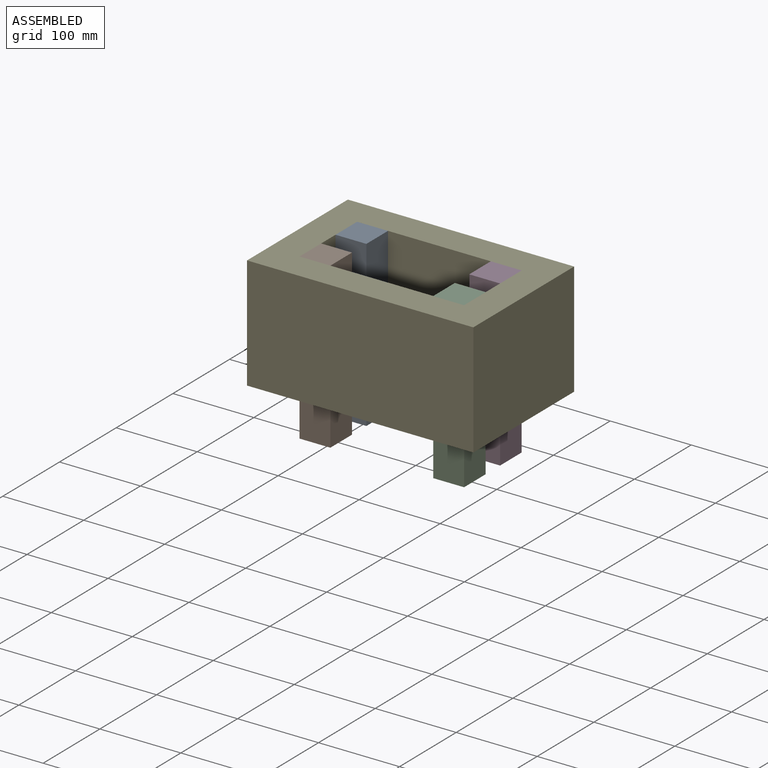
[diagram: assembled view]
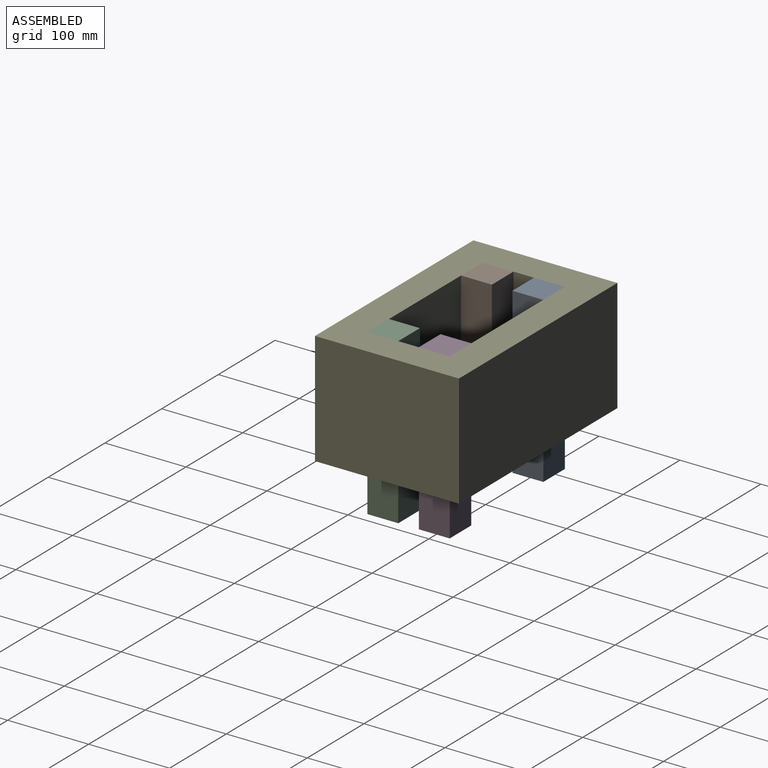
[diagram: assembled view, second angle]
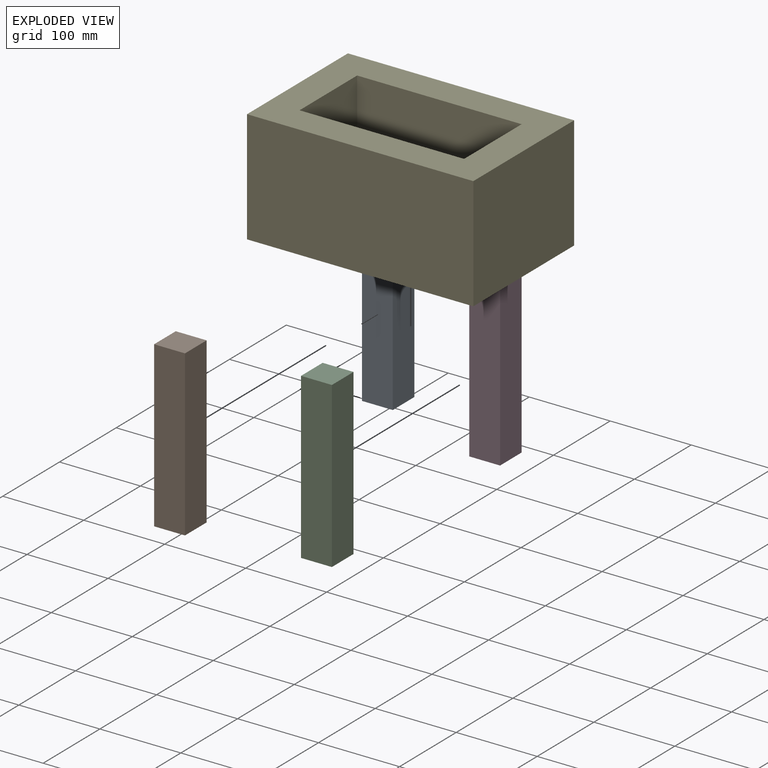
[diagram: exploded view]
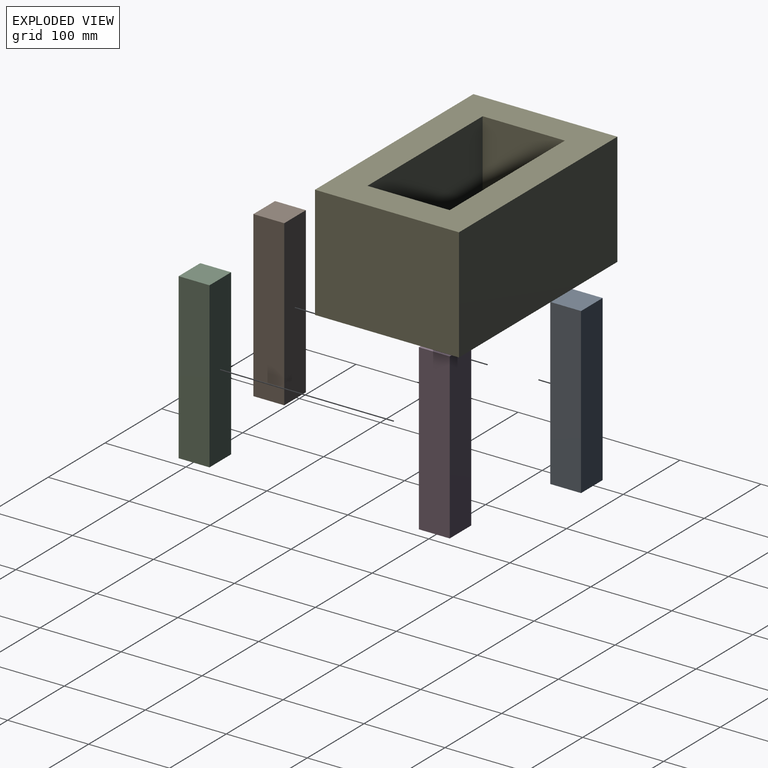
[diagram: exploded view, second angle]
ASSEMBLY  parts=5 mates=12
PART A: 6 faces, bbox 38.1x38.1x203.2 mm
  f0: plane 203.2x38.1mm, normal (1,0,0), area 7741.9mm2, adj f1,f3,f4,f5
  f1: plane 203.2x38.1mm, normal (0,1,0), area 7741.9mm2, adj f0,f2,f4,f5
  f2: plane 203.2x38.1mm, normal (-1,0,0), area 7741.9mm2, adj f1,f3,f4,f5
  f3: plane 203.2x38.1mm, normal (0,-1,0), area 7741.9mm2, adj f0,f2,f4,f5
  f4: plane 38.1x38.1mm, normal (0,0,1), area 1451.6mm2, adj f0,f1,f2,f3
  f5: plane 38.1x38.1mm, normal (0,0,-1), area 1451.6mm2, adj f0,f1,f2,f3
PART B: same geometry as A
PART C: same geometry as A
PART D: same geometry as A
PART E: 10 faces, bbox 279.4x177.8x139.7 mm
  f0: plane 279.4x177.8mm, normal (0,0,1), area 29032.2mm2, adj f2,f3,f4,f5,f6,f7,f8,f9
  f1: plane 279.4x177.8mm, normal (0,0,-1), area 29032.2mm2, adj f2,f3,f4,f5,f6,f7,f8,f9
  f2: plane 279.4x139.7mm, normal (0,-1,0), area 39032.2mm2, adj f0,f1,f3,f5
  f3: plane 177.8x139.7mm, normal (1,0,0), area 24838.7mm2, adj f0,f1,f2,f4
  f4: plane 279.4x139.7mm, normal (0,1,0), area 39032.2mm2, adj f0,f1,f3,f5
  f5: plane 177.8x139.7mm, normal (-1,0,0), area 24838.7mm2, adj f0,f1,f2,f4
  f6: plane 203.2x139.7mm, normal (0,1,0), area 28387mm2, adj f0,f1,f7,f9
  f7: plane 139.7x101.6mm, normal (-1,0,0), area 14193.5mm2, adj f0,f1,f6,f8
  f8: plane 203.2x139.7mm, normal (0,-1,0), area 28387mm2, adj f0,f1,f7,f9
  f9: plane 139.7x101.6mm, normal (1,0,0), area 14193.5mm2, adj f0,f1,f6,f8
PLACE A t=(-20.58,191.31,-38.27)mm
PLACE B t=(-20.58,127.81,-38.27)mm
PLACE C t=(144.52,127.81,-38.27)mm
PLACE D t=(144.52,191.31,-38.27)mm
PLACE E t=(61.97,159.56,25.23)mm
MATE planar C.f4 <-> E.f0  axis (0,0,1) through (144.52,127.81,164.93)mm
MATE planar A.f1 <-> E.f8  axis (0,1,0) through (-20.58,210.36,63.33)mm
MATE planar B.f3 <-> E.f6  axis (0,-1,0) through (-1.53,108.76,164.93)mm
MATE planar D.f0 <-> E.f7  axis (1,0,0) through (163.57,191.31,63.33)mm
MATE planar C.f3 <-> E.f6  axis (0,-1,0) through (144.52,108.76,63.33)mm
MATE planar C.f0 <-> E.f7  axis (1,0,0) through (163.57,127.81,63.33)mm
MATE planar D.f4 <-> E.f0  axis (0,0,1) through (144.52,191.31,164.93)mm
MATE planar D.f1 <-> E.f8  axis (0,1,0) through (144.52,210.36,63.33)mm
MATE planar B.f4 <-> E.f0  axis (0,0,1) through (-20.58,127.81,164.93)mm
MATE planar B.f2 <-> E.f9  axis (-1,0,0) through (-39.63,127.81,63.33)mm
MATE planar A.f4 <-> E.f0  axis (0,0,1) through (-20.58,191.31,164.93)mm
MATE planar A.f2 <-> E.f9  axis (-1,0,0) through (-39.63,191.31,63.33)mm
